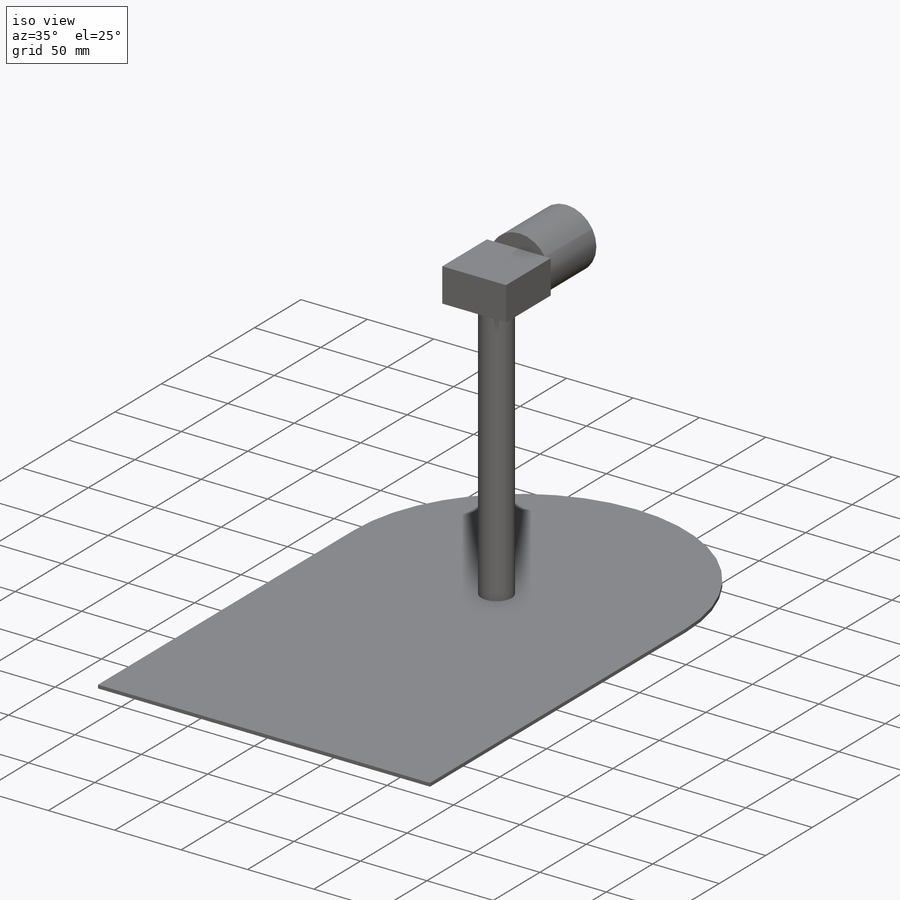
[diagram: iso view]
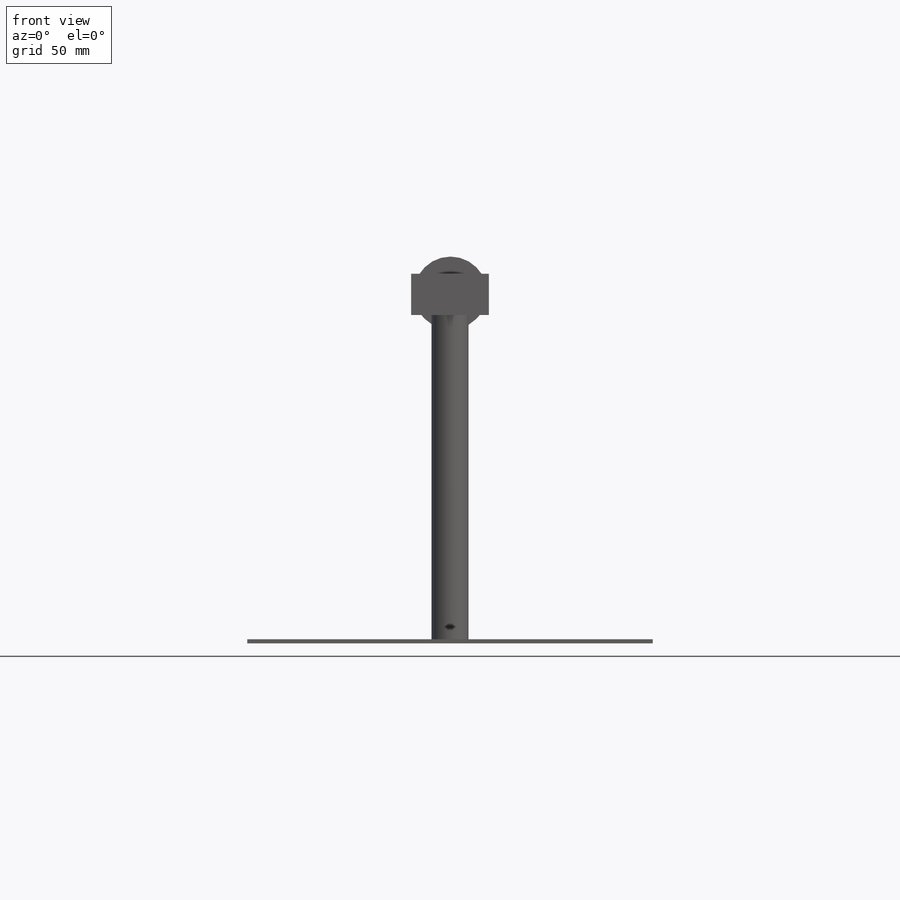
[diagram: front view]
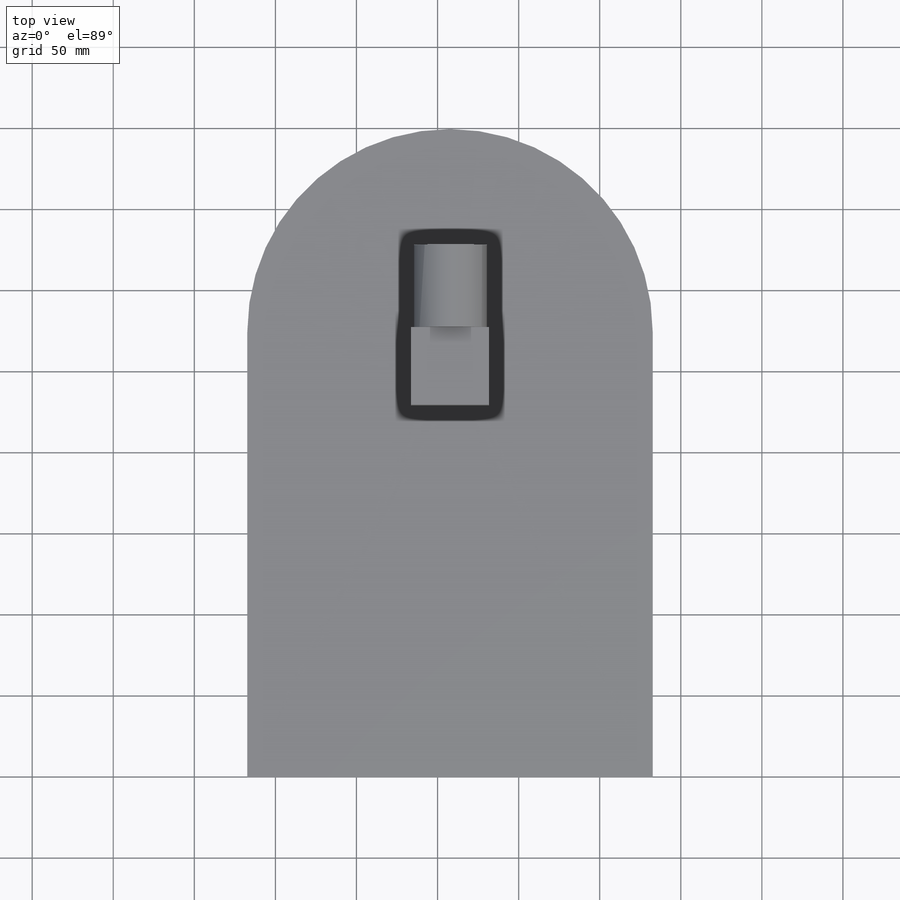
[diagram: top view]
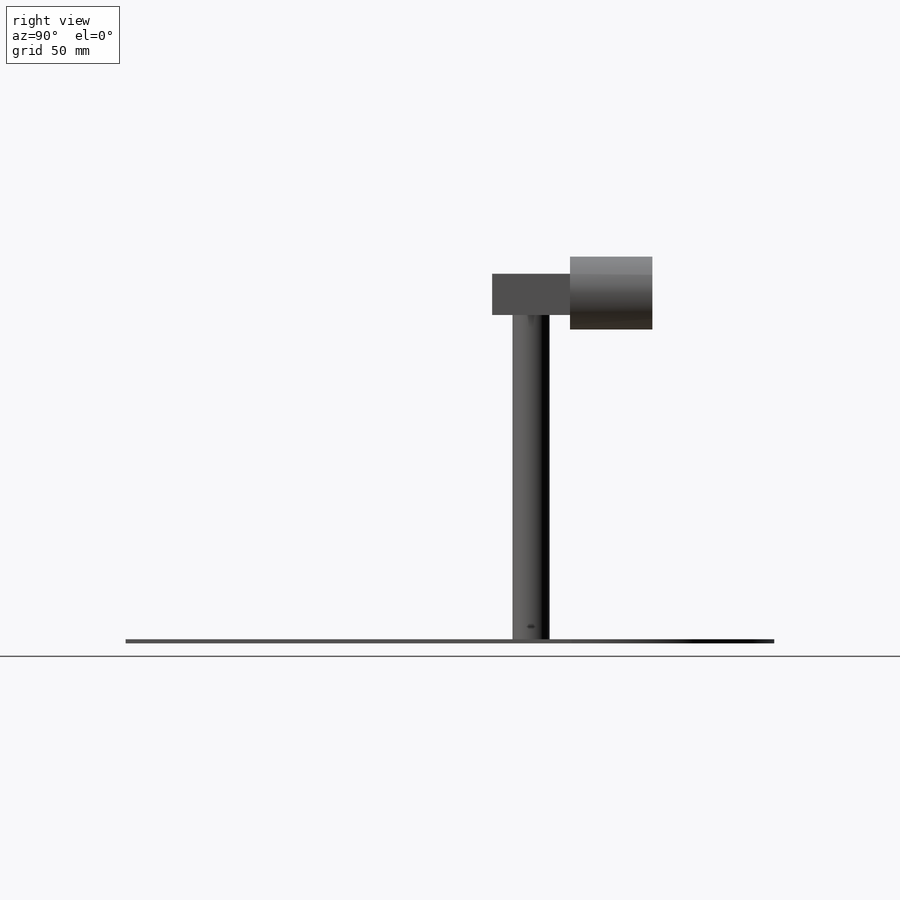
[diagram: right view]
SOLIDWORKS PART (.sldprt)
format: sldprt  version: not decoded by parser v0  size: 323,072 bytes
history: native  units: mm
features: sketch x4, extrude x4, material x1 (+13 scaffold rows collapsed)
feature tree (22):
  scaffold x13  (default folders/planes/origin — collapsed)
  material  "Teak"
  sketch  "Sketch1"  dims[D3=250.0mm D1=400.0mm D2=250.0mm]
  extrude  "Boss-Extrude1"  Depth=2.54mm
  sketch  "Sketch2"  dims[D1=150.0mm]
  extrude  "Boss-Extrude2"  Depth=200mm
  sketch  "Sketch3"  dims[c1.D2=~22.878951mm c1.D1=48.0mm c2.D2=48.0mm]
  extrude  "Boss-Extrude3"  Depth=25.4mm
  sketch  "Sketch4"  dims[D1=45.0mm]
  extrude  "Boss-Extrude4"  Depth=50.8mm
decode coverage: 8 of 8 modeling features carry decoded parameters
note: ~ marks probable driven/reference dimensions
note: suppression state not decoded; provenance and decode notes live in map.json
